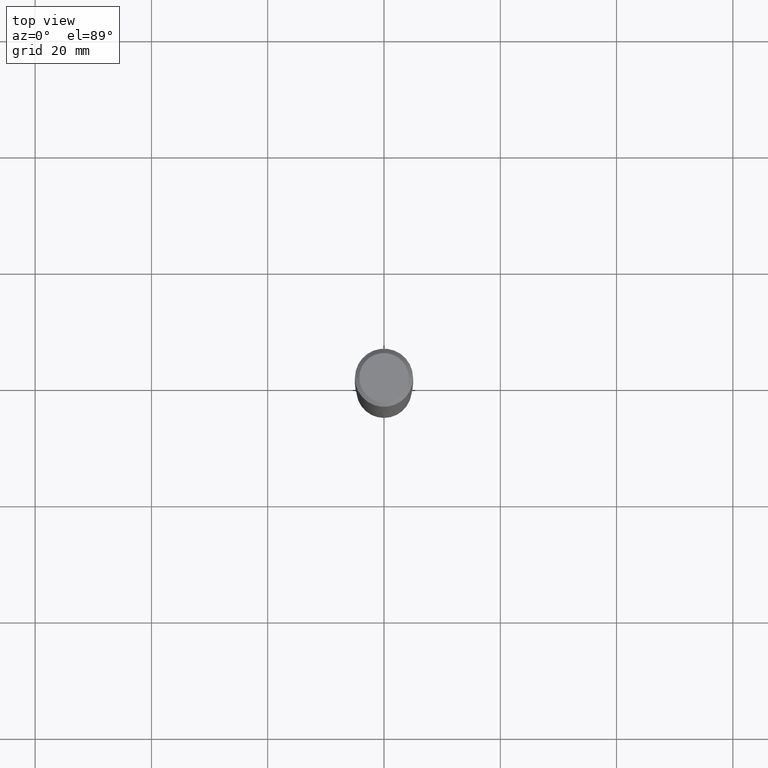
[diagram: clean part render]
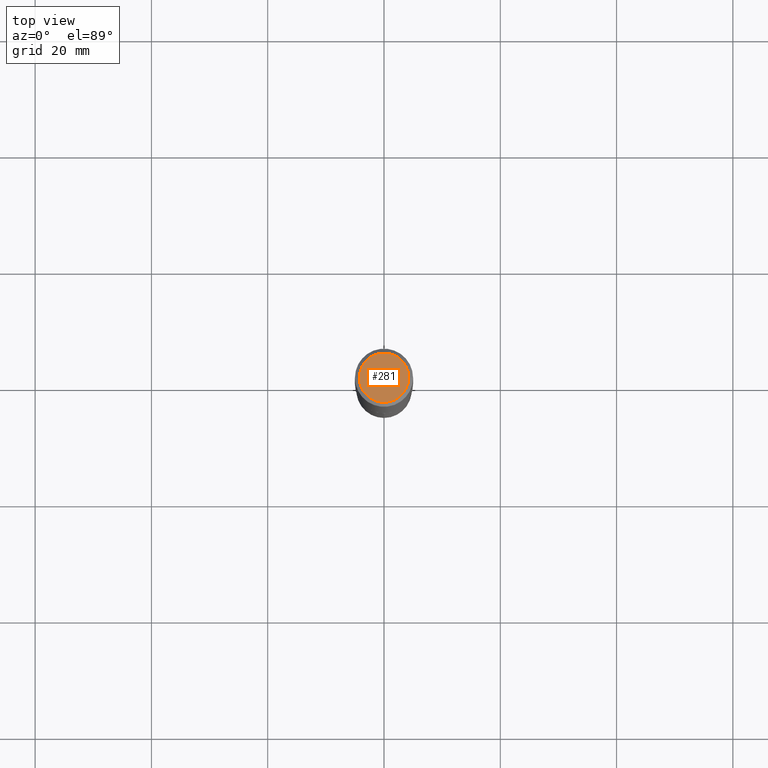
[diagram: same view with one face highlighted and labeled with its STEP entity id]
A machine part, top view. The second image highlights one B-rep face of the part: STEP entity #281.
In plain terms, the highlighted planar face has unit normal (0, -0, -1).
Its self-contained STEP definition (entity closure, byte-faithful):
#12 = CARTESIAN_POINT ( 'NONE',  ( -0.1673224999999999851, 1.219954130253505263E-15, 4.096137381439757534E-18 ) ) ;
#33 = CARTESIAN_POINT ( 'NONE',  ( -5.008488096090108951E-47, 7.150793614331948590E-33, 2.048068690724054183E-18 ) ) ;
#87 = EDGE_LOOP ( 'NONE', ( #198, #403 ) ) ;
#128 = EDGE_CURVE ( 'NONE', #447, #349, #336, .T. ) ;
#131 = AXIS2_PLACEMENT_3D ( 'NONE', #361, #296, #295 ) ;
#159 = AXIS2_PLACEMENT_3D ( 'NONE', #444, #194, #370 ) ;
#178 = DIRECTION ( 'NONE',  ( 2.438088387897960049E-29, -3.491481338843145188E-15, -1.000000000000000000 ) ) ;
#186 = CARTESIAN_POINT ( 'NONE',  ( 0.1673224999999999851, -1.300749711163072397E-15, 4.096137381456741925E-18 ) ) ;
#194 = DIRECTION ( 'NONE',  ( -2.445468806185136597E-29, 3.491481338843145583E-15, 1.000000000000000000 ) ) ;
#198 = ORIENTED_EDGE ( 'NONE', *, *, #128, .T. ) ;
#222 = FACE_OUTER_BOUND ( 'NONE', #87, .T. ) ;
#280 = AXIS2_PLACEMENT_3D ( 'NONE', #33, #178, #325 ) ;
#281 = ADVANCED_FACE ( 'NONE', ( #222 ), #359, .F. ) ;
#295 = DIRECTION ( 'NONE',  ( 1.000000000000000000, -6.982962677686267499E-15, 4.876294436782262290E-29 ) ) ;
#296 = DIRECTION ( 'NONE',  ( -2.445468806185136597E-29, 3.491481338843145583E-15, 1.000000000000000000 ) ) ;
#325 = DIRECTION ( 'NONE',  ( -1.000000000000000000, 6.982962677686265922E-15, -4.876176775795935793E-29 ) ) ;
#336 = CIRCLE ( 'NONE', #131, 0.1673224999999999851 ) ;
#337 = CIRCLE ( 'NONE', #159, 0.1673224999999999851 ) ;
#349 = VERTEX_POINT ( 'NONE', #186 ) ;
#359 = PLANE ( 'NONE',  #280 ) ;
#361 = CARTESIAN_POINT ( 'NONE',  ( -1.001697619218021790E-46, 1.430158722866389718E-32, 4.096137381448108366E-18 ) ) ;
#370 = DIRECTION ( 'NONE',  ( 1.000000000000000000, -6.982962677686267499E-15, 4.876294436782262290E-29 ) ) ;
#378 = EDGE_CURVE ( 'NONE', #349, #447, #337, .T. ) ;
#403 = ORIENTED_EDGE ( 'NONE', *, *, #378, .T. ) ;
#444 = CARTESIAN_POINT ( 'NONE',  ( -1.001697619218021790E-46, 1.430158722866389718E-32, 4.096137381448108366E-18 ) ) ;
#447 = VERTEX_POINT ( 'NONE', #12 ) ;